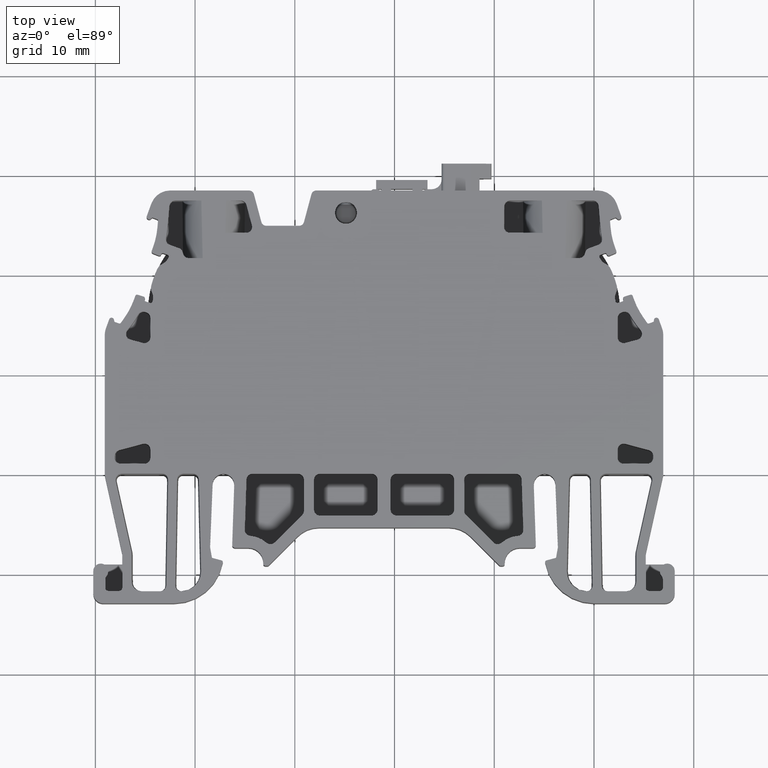
[diagram: clean part render]
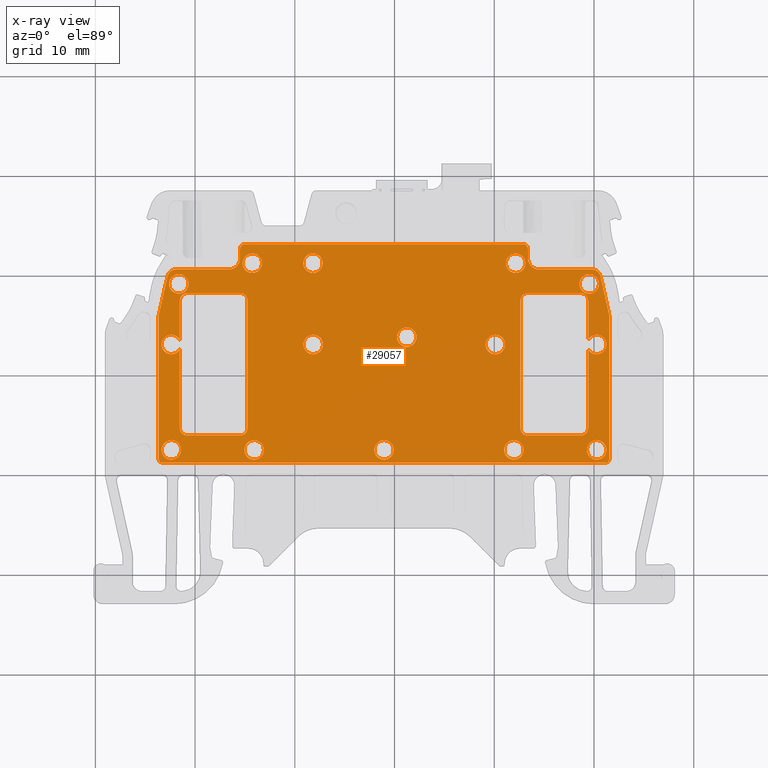
[diagram: x-ray — body ghosted, one internal face saturated and labeled with its STEP entity id]
A machine part, top view, then the same camera in x-ray: the body is ghosted and one INTERNAL B-rep face — a face not visible from any outside direction — is saturated and labeled: STEP entity #29057.
In plain terms, the highlighted planar face has unit normal (0, 0, 1).
Its self-contained STEP definition (entity closure, byte-faithful):
#2163 = CARTESIAN_POINT ( 'NONE',  ( 1041.168182212110200, 941.5662900422720400, -0.6999999999999999600 ) ) ;
#2164 = DIRECTION ( 'NONE',  ( 1.000000000000000000, 0.0000000000000000000, 0.0000000000000000000 ) ) ;
#2169 = CARTESIAN_POINT ( 'NONE',  ( 996.7187916286291100, 941.5662900422720400, -0.6999999999999999600 ) ) ;
#2170 = DIRECTION ( 'NONE',  ( 0.0000000000000000000, 0.0000000000000000000, 1.000000000000000000 ) ) ;
#2171 = CARTESIAN_POINT ( 'NONE',  ( 997.2346988465840200, 959.8791077576520400, -0.6999999999999999600 ) ) ;
#2172 = LINE ( 'NONE', #2171, #4394 ) ;
#2175 = DIRECTION ( 'NONE',  ( 1.000000000000000000, 0.0000000000000000000, 0.0000000000000000000 ) ) ;
#2177 = LINE ( 'NONE', #2194, #4398 ) ;
#2180 = CARTESIAN_POINT ( 'NONE',  ( 1003.385780318629900, 960.5626969177129700, -0.6999999999999999600 ) ) ;
#2186 = CARTESIAN_POINT ( 'NONE',  ( 998.0885061376949400, 959.6876969177120600, -0.6999999999999999600 ) ) ;
#2187 = DIRECTION ( 'NONE',  ( 0.0000000000000000000, 0.0000000000000000000, 1.000000000000000000 ) ) ;
#2189 = LINE ( 'NONE', #2180, #4418 ) ;
#2190 = DIRECTION ( 'NONE',  ( -0.2187552456458110300, -0.9757797612691302400, 0.0000000000000000000 ) ) ;
#2193 = DIRECTION ( 'NONE',  ( -1.000000000000000000, -1.676670659971970000E-013, 0.0000000000000000000 ) ) ;
#2194 = CARTESIAN_POINT ( 'NONE',  ( 1004.510780318629900, 962.6253022407199800, -0.6999999999999999600 ) ) ;
#2195 = DIRECTION ( 'NONE',  ( 0.0000000000000000000, -1.000000000000000000, 0.0000000000000000000 ) ) ;
#2196 = DIRECTION ( 'NONE',  ( 0.0000000000000000000, 0.0000000000000000000, 1.000000000000000000 ) ) ;
#2198 = DIRECTION ( 'NONE',  ( 1.000000000000000000, 0.0000000000000000000, 0.0000000000000000000 ) ) ;
#2203 = CARTESIAN_POINT ( 'NONE',  ( 1003.385780318629900, 961.6876969177130800, -0.6999999999999999600 ) ) ;
#2205 = DIRECTION ( 'NONE',  ( 1.000000000000000000, 0.0000000000000000000, 0.0000000000000000000 ) ) ;
#2209 = CARTESIAN_POINT ( 'NONE',  ( 1032.901191964936100, 962.6253022407199800, -0.6999999999999999600 ) ) ;
#2215 = DIRECTION ( 'NONE',  ( 1.000000000000000000, 0.0000000000000000000, 0.0000000000000000000 ) ) ;
#2217 = DIRECTION ( 'NONE',  ( 0.0000000000000000000, 0.0000000000000000000, 1.000000000000000000 ) ) ;
#2224 = DIRECTION ( 'NONE',  ( 1.559087638495740400E-014, 1.000000000000000000, 0.0000000000000000000 ) ) ;
#2225 = DIRECTION ( 'NONE',  ( 0.0000000000000000000, 0.0000000000000000000, -1.000000000000000000 ) ) ;
#2236 = CARTESIAN_POINT ( 'NONE',  ( 997.2187916286280800, 955.8082479311349300, -0.6999999999999999600 ) ) ;
#2237 = DIRECTION ( 'NONE',  ( 1.000000000000000000, 0.0000000000000000000, 0.0000000000000000000 ) ) ;
#2238 = DIRECTION ( 'NONE',  ( 0.0000000000000000000, 0.0000000000000000000, 1.000000000000000000 ) ) ;
#2246 = LINE ( 'NONE', #2247, #3134 ) ;
#2247 = CARTESIAN_POINT ( 'NONE',  ( 1041.543182212110200, 941.5662900422720400, -0.6999999999999999600 ) ) ;
#3134 = VECTOR ( 'NONE', #2224, 1000.000000000000000 ) ;
#3135 = CIRCLE ( 'NONE', #3142, 1.125000000000042600 ) ;
#3142 = AXIS2_PLACEMENT_3D ( 'NONE', #2203, #2225, #2215 ) ;
#4219 = VECTOR ( 'NONE', #14436, 1000.000000000000000 ) ;
#4285 = CIRCLE ( 'NONE', #4306, 0.4750000000000032000 ) ;
#4299 = CIRCLE ( 'NONE', #4331, 0.9749999999999481300 ) ;
#4306 = AXIS2_PLACEMENT_3D ( 'NONE', #14376, #14378, #12735 ) ;
#4309 = CIRCLE ( 'NONE', #4342, 0.8750000000001811900 ) ;
#4320 = VECTOR ( 'NONE', #12764, 1000.000000000000000 ) ;
#4331 = AXIS2_PLACEMENT_3D ( 'NONE', #14456, #14445, #14448 ) ;
#4342 = AXIS2_PLACEMENT_3D ( 'NONE', #12753, #12744, #12733 ) ;
#4355 = CIRCLE ( 'NONE', #4423, 0.3749999999999031900 ) ;
#4367 = CIRCLE ( 'NONE', #4372, 0.8749999999997371000 ) ;
#4372 = AXIS2_PLACEMENT_3D ( 'NONE', #2236, #2217, #2237 ) ;
#4385 = AXIS2_PLACEMENT_3D ( 'NONE', #2163, #2196, #2164 ) ;
#4394 = VECTOR ( 'NONE', #2190, 1000.000000000000200 ) ;
#4396 = AXIS2_PLACEMENT_3D ( 'NONE', #2186, #2187, #2175 ) ;
#4398 = VECTOR ( 'NONE', #2195, 1000.000000000000000 ) ;
#4400 = CIRCLE ( 'NONE', #4435, 0.4750000000000032000 ) ;
#4413 = CIRCLE ( 'NONE', #4385, 0.3750000000002362600 ) ;
#4418 = VECTOR ( 'NONE', #2193, 1000.000000000000000 ) ;
#4423 = AXIS2_PLACEMENT_3D ( 'NONE', #2169, #2170, #2198 ) ;
#4429 = CIRCLE ( 'NONE', #4396, 0.8749999999999591400 ) ;
#4435 = AXIS2_PLACEMENT_3D ( 'NONE', #2209, #2238, #2205 ) ;
#7317 = CIRCLE ( 'NONE', #7367, 0.9749999999999481300 ) ;
#7318 = AXIS2_PLACEMENT_3D ( 'NONE', #8280, #8256, #8279 ) ;
#7333 = CIRCLE ( 'NONE', #7344, 0.9750000000001701700 ) ;
#7341 = CIRCLE ( 'NONE', #7354, 0.9750000000001701700 ) ;
#7344 = AXIS2_PLACEMENT_3D ( 'NONE', #8313, #8297, #8302 ) ;
#7349 = CIRCLE ( 'NONE', #7363, 0.9750000000001701700 ) ;
#7354 = AXIS2_PLACEMENT_3D ( 'NONE', #8247, #8250, #8219 ) ;
#7359 = CIRCLE ( 'NONE', #7318, 0.9749999999999481300 ) ;
#7363 = AXIS2_PLACEMENT_3D ( 'NONE', #8304, #8305, #8306 ) ;
#7367 = AXIS2_PLACEMENT_3D ( 'NONE', #8311, #8335, #8310 ) ;
#7373 = CIRCLE ( 'NONE', #7420, 0.9749999999999481300 ) ;
#7379 = AXIS2_PLACEMENT_3D ( 'NONE', #8442, #8457, #8447 ) ;
#7383 = AXIS2_PLACEMENT_3D ( 'NONE', #8483, #8517, #8499 ) ;
#7391 = AXIS2_PLACEMENT_3D ( 'NONE', #8463, #8431, #8468 ) ;
#7396 = CIRCLE ( 'NONE', #7398, 0.9749999999999481300 ) ;
#7398 = AXIS2_PLACEMENT_3D ( 'NONE', #8490, #8501, #8503 ) ;
#7403 = CIRCLE ( 'NONE', #7379, 0.9750000000001701700 ) ;
#7409 = CIRCLE ( 'NONE', #7391, 0.9749999999999481300 ) ;
#7413 = CIRCLE ( 'NONE', #7383, 0.9750000000001701700 ) ;
#7415 = AXIS2_PLACEMENT_3D ( 'NONE', #8433, #8444, #8465 ) ;
#7420 = AXIS2_PLACEMENT_3D ( 'NONE', #8354, #8344, #8362 ) ;
#7427 = CIRCLE ( 'NONE', #7415, 0.9749999999999481300 ) ;
#7429 = CIRCLE ( 'NONE', #7445, 0.9750000000001701700 ) ;
#7442 = AXIS2_PLACEMENT_3D ( 'NONE', #8524, #8552, #8553 ) ;
#7445 = AXIS2_PLACEMENT_3D ( 'NONE', #8641, #8627, #8644 ) ;
#7457 = CIRCLE ( 'NONE', #7458, 1.125000000000042600 ) ;
#7458 = AXIS2_PLACEMENT_3D ( 'NONE', #8677, #8689, #8678 ) ;
#7481 = VECTOR ( 'NONE', #8639, 1000.000000000000000 ) ;
#7484 = CIRCLE ( 'NONE', #7442, 0.9749999999999481300 ) ;
#7524 = CIRCLE ( 'NONE', #7530, 0.9750000000001701700 ) ;
#7527 = VECTOR ( 'NONE', #8803, 1000.000000000000000 ) ;
#7530 = AXIS2_PLACEMENT_3D ( 'NONE', #8767, #8756, #8764 ) ;
#8219 = DIRECTION ( 'NONE',  ( 1.000000000000000000, 0.0000000000000000000, 0.0000000000000000000 ) ) ;
#8247 = CARTESIAN_POINT ( 'NONE',  ( 1030.105964989748100, 953.0374038595549600, -0.6999999999999999600 ) ) ;
#8250 = DIRECTION ( 'NONE',  ( 0.0000000000000000000, 0.0000000000000000000, 1.000000000000000000 ) ) ;
#8256 = DIRECTION ( 'NONE',  ( 0.0000000000000000000, 0.0000000000000000000, 1.000000000000000000 ) ) ;
#8279 = DIRECTION ( 'NONE',  ( 1.000000000000000000, 0.0000000000000000000, 0.0000000000000000000 ) ) ;
#8280 = CARTESIAN_POINT ( 'NONE',  ( 997.6187916286289700, 953.0373964913529800, -0.6999999999999999600 ) ) ;
#8297 = DIRECTION ( 'NONE',  ( 0.0000000000000000000, 0.0000000000000000000, 1.000000000000000000 ) ) ;
#8302 = DIRECTION ( 'NONE',  ( 1.000000000000000000, 0.0000000000000000000, 0.0000000000000000000 ) ) ;
#8304 = CARTESIAN_POINT ( 'NONE',  ( 1032.143483303782200, 961.1877988705668900, -0.6999999999999999600 ) ) ;
#8305 = DIRECTION ( 'NONE',  ( 0.0000000000000000000, 0.0000000000000000000, 1.000000000000000000 ) ) ;
#8306 = DIRECTION ( 'NONE',  ( 1.000000000000000000, 0.0000000000000000000, 0.0000000000000000000 ) ) ;
#8310 = DIRECTION ( 'NONE',  ( 1.000000000000000000, 0.0000000000000000000, 0.0000000000000000000 ) ) ;
#8311 = CARTESIAN_POINT ( 'NONE',  ( 1005.743488979784000, 961.1877988705668900, -0.6999999999999999600 ) ) ;
#8313 = CARTESIAN_POINT ( 'NONE',  ( 1005.920869548916100, 942.4662900422720200, -0.6999999999999999600 ) ) ;
#8335 = DIRECTION ( 'NONE',  ( 0.0000000000000000000, 0.0000000000000000000, 1.000000000000000000 ) ) ;
#8344 = DIRECTION ( 'NONE',  ( 0.0000000000000000000, 0.0000000000000000000, 1.000000000000000000 ) ) ;
#8354 = CARTESIAN_POINT ( 'NONE',  ( 997.6187916286289700, 942.4662900422720200, -0.6999999999999999600 ) ) ;
#8362 = DIRECTION ( 'NONE',  ( 1.000000000000000000, 0.0000000000000000000, 0.0000000000000000000 ) ) ;
#8431 = DIRECTION ( 'NONE',  ( 0.0000000000000000000, 0.0000000000000000000, 1.000000000000000000 ) ) ;
#8433 = CARTESIAN_POINT ( 'NONE',  ( 1011.822946062605900, 961.1877988705668900, -0.6999999999999999600 ) ) ;
#8442 = CARTESIAN_POINT ( 'NONE',  ( 1040.268182212110100, 953.0373964913529800, -0.6999999999999999600 ) ) ;
#8444 = DIRECTION ( 'NONE',  ( 0.0000000000000000000, 0.0000000000000000000, 1.000000000000000000 ) ) ;
#8447 = DIRECTION ( 'NONE',  ( 1.000000000000000000, 0.0000000000000000000, 0.0000000000000000000 ) ) ;
#8457 = DIRECTION ( 'NONE',  ( 0.0000000000000000000, 0.0000000000000000000, 1.000000000000000000 ) ) ;
#8463 = CARTESIAN_POINT ( 'NONE',  ( 1039.517423389122100, 959.1127957486720600, -0.6999999999999999600 ) ) ;
#8465 = DIRECTION ( 'NONE',  ( 1.000000000000000000, 0.0000000000000000000, 0.0000000000000000000 ) ) ;
#8468 = DIRECTION ( 'NONE',  ( 1.000000000000000000, 0.0000000000000000000, 0.0000000000000000000 ) ) ;
#8483 = CARTESIAN_POINT ( 'NONE',  ( 1040.268182212110100, 942.4662900422720200, -0.6999999999999999600 ) ) ;
#8490 = CARTESIAN_POINT ( 'NONE',  ( 1011.843485453461900, 953.0374038595549600, -0.6999999999999999600 ) ) ;
#8499 = DIRECTION ( 'NONE',  ( 1.000000000000000000, 0.0000000000000000000, 0.0000000000000000000 ) ) ;
#8501 = DIRECTION ( 'NONE',  ( 0.0000000000000000000, 0.0000000000000000000, 1.000000000000000000 ) ) ;
#8503 = DIRECTION ( 'NONE',  ( 1.000000000000000000, 0.0000000000000000000, 0.0000000000000000000 ) ) ;
#8517 = DIRECTION ( 'NONE',  ( 0.0000000000000000000, 0.0000000000000000000, 1.000000000000000000 ) ) ;
#8524 = CARTESIAN_POINT ( 'NONE',  ( 1031.966102734649900, 942.4662900422720200, -0.6999999999999999600 ) ) ;
#8552 = DIRECTION ( 'NONE',  ( 0.0000000000000000000, 0.0000000000000000000, 1.000000000000000000 ) ) ;
#8553 = DIRECTION ( 'NONE',  ( 1.000000000000000000, 0.0000000000000000000, 0.0000000000000000000 ) ) ;
#8627 = DIRECTION ( 'NONE',  ( 0.0000000000000000000, 0.0000000000000000000, 1.000000000000000000 ) ) ;
#8636 = LINE ( 'NONE', #8638, #7481 ) ;
#8638 = CARTESIAN_POINT ( 'NONE',  ( 1033.376191964936000, 961.6876969177120600, -0.6999999999999999600 ) ) ;
#8639 = DIRECTION ( 'NONE',  ( 0.0000000000000000000, 1.000000000000000000, 0.0000000000000000000 ) ) ;
#8641 = CARTESIAN_POINT ( 'NONE',  ( 1018.943486141783900, 942.4662900422720200, -0.6999999999999999600 ) ) ;
#8644 = DIRECTION ( 'NONE',  ( 1.000000000000000000, 0.0000000000000000000, 0.0000000000000000000 ) ) ;
#8677 = CARTESIAN_POINT ( 'NONE',  ( 1034.501191964935700, 961.6876969177120600, -0.6999999999999999600 ) ) ;
#8678 = DIRECTION ( 'NONE',  ( 1.000000000000000000, 0.0000000000000000000, 0.0000000000000000000 ) ) ;
#8689 = DIRECTION ( 'NONE',  ( 0.0000000000000000000, 0.0000000000000000000, -1.000000000000000000 ) ) ;
#8756 = DIRECTION ( 'NONE',  ( 0.0000000000000000000, 0.0000000000000000000, 1.000000000000000000 ) ) ;
#8764 = DIRECTION ( 'NONE',  ( 1.000000000000000000, 0.0000000000000000000, 0.0000000000000000000 ) ) ;
#8767 = CARTESIAN_POINT ( 'NONE',  ( 1021.224725221606000, 953.7757349748010300, -0.6999999999999999600 ) ) ;
#8800 = CARTESIAN_POINT ( 'NONE',  ( 1032.901191964936100, 963.1003022407200000, -0.6999999999999999600 ) ) ;
#8803 = DIRECTION ( 'NONE',  ( -1.000000000000000000, 3.977097091355420400E-015, 0.0000000000000000000 ) ) ;
#8826 = LINE ( 'NONE', #8800, #7527 ) ;
#9926 = EDGE_LOOP ( 'NONE', ( #38751, #38736, #38690, #38764, #38748, #38772, #38735, #38707, #38759, #38783, #38747 ) ) ;
#9930 = EDGE_LOOP ( 'NONE', ( #38749, #38779, #38769, #38781, #38698, #38691, #38720, #38757, #16492, #16449, #16513 ) ) ;
#9934 = EDGE_LOOP ( 'NONE', ( #15766, #15780 ) ) ;
#9935 = EDGE_LOOP ( 'NONE', ( #16434, #16531 ) ) ;
#9936 = EDGE_LOOP ( 'NONE', ( #16532, #16524 ) ) ;
#9948 = EDGE_LOOP ( 'NONE', ( #16525, #16431 ) ) ;
#9979 = EDGE_LOOP ( 'NONE', ( #15793, #15715 ) ) ;
#10003 = EDGE_LOOP ( 'NONE', ( #15812, #15782, #15794, #15781, #15792, #15711, #15785, #15738, #15717, #15742, #15805, #15729, #15818, #15768, #15725, #15777, #15826, #15726, #15776, #15749 ) ) ;
#10017 = EDGE_LOOP ( 'NONE', ( #15735, #15714 ) ) ;
#10019 = EDGE_LOOP ( 'NONE', ( #15791, #15767 ) ) ;
#10024 = EDGE_LOOP ( 'NONE', ( #16463, #16455 ) ) ;
#10028 = EDGE_LOOP ( 'NONE', ( #15739, #15834 ) ) ;
#10032 = EDGE_LOOP ( 'NONE', ( #15770, #15741 ) ) ;
#10033 = EDGE_LOOP ( 'NONE', ( #15804, #15740 ) ) ;
#10036 = EDGE_LOOP ( 'NONE', ( #15813, #15822 ) ) ;
#10037 = EDGE_LOOP ( 'NONE', ( #16429, #16436 ) ) ;
#10591 = EDGE_CURVE ( 'NONE', #11855, #11968, #14438, .T. ) ;
#10601 = EDGE_CURVE ( 'NONE', #11948, #11908, #4299, .T. ) ;
#10602 = EDGE_CURVE ( 'NONE', #11939, #11954, #4285, .T. ) ;
#10604 = EDGE_CURVE ( 'NONE', #11965, #11960, #14403, .T. ) ;
#10607 = EDGE_CURVE ( 'NONE', #11880, #11864, #4309, .T. ) ;
#10620 = EDGE_CURVE ( 'NONE', #11960, #11899, #4413, .T. ) ;
#10622 = EDGE_CURVE ( 'NONE', #11896, #11949, #2189, .T. ) ;
#10625 = EDGE_CURVE ( 'NONE', #11954, #11903, #2177, .T. ) ;
#10626 = EDGE_CURVE ( 'NONE', #11851, #11950, #2172, .T. ) ;
#10627 = EDGE_CURVE ( 'NONE', #11949, #11851, #4429, .T. ) ;
#10628 = EDGE_CURVE ( 'NONE', #11968, #11965, #4355, .T. ) ;
#10635 = EDGE_CURVE ( 'NONE', #11950, #11855, #4367, .T. ) ;
#10636 = EDGE_CURVE ( 'NONE', #11923, #11913, #4400, .T. ) ;
#10645 = EDGE_CURVE ( 'NONE', #11899, #11880, #2246, .T. ) ;
#10646 = EDGE_CURVE ( 'NONE', #11903, #11896, #3135, .T. ) ;
#11794 = VERTEX_POINT ( 'NONE', #41128 ) ;
#11802 = VERTEX_POINT ( 'NONE', #41164 ) ;
#11808 = VERTEX_POINT ( 'NONE', #41120 ) ;
#11813 = VERTEX_POINT ( 'NONE', #41151 ) ;
#11818 = VERTEX_POINT ( 'NONE', #41165 ) ;
#11842 = VERTEX_POINT ( 'NONE', #41233 ) ;
#11850 = VERTEX_POINT ( 'NONE', #41224 ) ;
#11851 = VERTEX_POINT ( 'NONE', #41177 ) ;
#11854 = VERTEX_POINT ( 'NONE', #41218 ) ;
#11855 = VERTEX_POINT ( 'NONE', #41227 ) ;
#11856 = VERTEX_POINT ( 'NONE', #41170 ) ;
#11860 = VERTEX_POINT ( 'NONE', #41171 ) ;
#11862 = VERTEX_POINT ( 'NONE', #41220 ) ;
#11863 = VERTEX_POINT ( 'NONE', #41194 ) ;
#11864 = VERTEX_POINT ( 'NONE', #41209 ) ;
#11866 = VERTEX_POINT ( 'NONE', #41231 ) ;
#11868 = VERTEX_POINT ( 'NONE', #41172 ) ;
#11869 = VERTEX_POINT ( 'NONE', #41221 ) ;
#11870 = VERTEX_POINT ( 'NONE', #41188 ) ;
#11880 = VERTEX_POINT ( 'NONE', #41185 ) ;
#11882 = VERTEX_POINT ( 'NONE', #41197 ) ;
#11889 = VERTEX_POINT ( 'NONE', #41210 ) ;
#11890 = VERTEX_POINT ( 'NONE', #41280 ) ;
#11892 = VERTEX_POINT ( 'NONE', #41286 ) ;
#11894 = VERTEX_POINT ( 'NONE', #41290 ) ;
#11896 = VERTEX_POINT ( 'NONE', #41239 ) ;
#11899 = VERTEX_POINT ( 'NONE', #41274 ) ;
#11901 = VERTEX_POINT ( 'NONE', #41297 ) ;
#11902 = VERTEX_POINT ( 'NONE', #41295 ) ;
#11903 = VERTEX_POINT ( 'NONE', #41255 ) ;
#11905 = VERTEX_POINT ( 'NONE', #41287 ) ;
#11906 = VERTEX_POINT ( 'NONE', #41284 ) ;
#11907 = VERTEX_POINT ( 'NONE', #41248 ) ;
#11908 = VERTEX_POINT ( 'NONE', #41282 ) ;
#11911 = VERTEX_POINT ( 'NONE', #41237 ) ;
#11912 = VERTEX_POINT ( 'NONE', #41254 ) ;
#11913 = VERTEX_POINT ( 'NONE', #41285 ) ;
#11915 = VERTEX_POINT ( 'NONE', #41296 ) ;
#11919 = VERTEX_POINT ( 'NONE', #41252 ) ;
#11920 = VERTEX_POINT ( 'NONE', #41244 ) ;
#11923 = VERTEX_POINT ( 'NONE', #41281 ) ;
#11924 = VERTEX_POINT ( 'NONE', #41291 ) ;
#11927 = VERTEX_POINT ( 'NONE', #41240 ) ;
#11928 = VERTEX_POINT ( 'NONE', #41292 ) ;
#11929 = VERTEX_POINT ( 'NONE', #41256 ) ;
#11932 = VERTEX_POINT ( 'NONE', #41253 ) ;
#11933 = VERTEX_POINT ( 'NONE', #41242 ) ;
#11939 = VERTEX_POINT ( 'NONE', #41273 ) ;
#11943 = VERTEX_POINT ( 'NONE', #41264 ) ;
#11948 = VERTEX_POINT ( 'NONE', #41268 ) ;
#11949 = VERTEX_POINT ( 'NONE', #41289 ) ;
#11950 = VERTEX_POINT ( 'NONE', #41241 ) ;
#11954 = VERTEX_POINT ( 'NONE', #41327 ) ;
#11955 = VERTEX_POINT ( 'NONE', #41308 ) ;
#11957 = VERTEX_POINT ( 'NONE', #41341 ) ;
#11960 = VERTEX_POINT ( 'NONE', #41340 ) ;
#11965 = VERTEX_POINT ( 'NONE', #41310 ) ;
#11968 = VERTEX_POINT ( 'NONE', #41320 ) ;
#11970 = VERTEX_POINT ( 'NONE', #41345 ) ;
#11971 = VERTEX_POINT ( 'NONE', #41358 ) ;
#11972 = VERTEX_POINT ( 'NONE', #41312 ) ;
#11974 = VERTEX_POINT ( 'NONE', #41343 ) ;
#11976 = VERTEX_POINT ( 'NONE', #41335 ) ;
#11982 = VERTEX_POINT ( 'NONE', #41323 ) ;
#12011 = VERTEX_POINT ( 'NONE', #41314 ) ;
#12012 = VERTEX_POINT ( 'NONE', #41318 ) ;
#12025 = VERTEX_POINT ( 'NONE', #41422 ) ;
#12041 = VERTEX_POINT ( 'NONE', #41419 ) ;
#12733 = DIRECTION ( 'NONE',  ( 1.000000000000000000, 0.0000000000000000000, 0.0000000000000000000 ) ) ;
#12735 = DIRECTION ( 'NONE',  ( 1.000000000000000000, 0.0000000000000000000, 0.0000000000000000000 ) ) ;
#12744 = DIRECTION ( 'NONE',  ( 0.0000000000000000000, 0.0000000000000000000, 1.000000000000000000 ) ) ;
#12753 = CARTESIAN_POINT ( 'NONE',  ( 1040.668182212110200, 955.8082479311349300, -0.6999999999999999600 ) ) ;
#12764 = DIRECTION ( 'NONE',  ( 1.000000000000000000, 2.497723838395525500E-015, 0.0000000000000000000 ) ) ;
#14376 = CARTESIAN_POINT ( 'NONE',  ( 1004.985780318630000, 962.6253022407199800, -0.6999999999999999600 ) ) ;
#14378 = DIRECTION ( 'NONE',  ( 0.0000000000000000000, 0.0000000000000000000, 1.000000000000000000 ) ) ;
#14403 = LINE ( 'NONE', #14412, #4320 ) ;
#14412 = CARTESIAN_POINT ( 'NONE',  ( 996.7187916286291100, 941.1912900422719300, -0.6999999999999999600 ) ) ;
#14436 = DIRECTION ( 'NONE',  ( 1.559087638495690200E-014, -1.000000000000000000, 0.0000000000000000000 ) ) ;
#14438 = LINE ( 'NONE', #14443, #4219 ) ;
#14443 = CARTESIAN_POINT ( 'NONE',  ( 996.3437916286291100, 955.8082479311349300, -0.6999999999999999600 ) ) ;
#14445 = DIRECTION ( 'NONE',  ( 0.0000000000000000000, 0.0000000000000000000, 1.000000000000000000 ) ) ;
#14448 = DIRECTION ( 'NONE',  ( 1.000000000000000000, 0.0000000000000000000, 0.0000000000000000000 ) ) ;
#14456 = CARTESIAN_POINT ( 'NONE',  ( 998.3695504516169900, 959.1127957486720600, -0.6999999999999999600 ) ) ;
#15711 = ORIENTED_EDGE ( 'NONE', *, *, #10645, .F. ) ;
#15714 = ORIENTED_EDGE ( 'NONE', *, *, #29337, .T. ) ;
#15715 = ORIENTED_EDGE ( 'NONE', *, *, #29382, .T. ) ;
#15717 = ORIENTED_EDGE ( 'NONE', *, *, #10628, .F. ) ;
#15725 = ORIENTED_EDGE ( 'NONE', *, *, #10646, .F. ) ;
#15726 = ORIENTED_EDGE ( 'NONE', *, *, #20647, .F. ) ;
#15729 = ORIENTED_EDGE ( 'NONE', *, *, #10626, .F. ) ;
#15735 = ORIENTED_EDGE ( 'NONE', *, *, #20561, .T. ) ;
#15738 = ORIENTED_EDGE ( 'NONE', *, *, #10604, .F. ) ;
#15739 = ORIENTED_EDGE ( 'NONE', *, *, #20634, .T. ) ;
#15740 = ORIENTED_EDGE ( 'NONE', *, *, #29410, .T. ) ;
#15741 = ORIENTED_EDGE ( 'NONE', *, *, #29395, .T. ) ;
#15742 = ORIENTED_EDGE ( 'NONE', *, *, #10591, .F. ) ;
#15749 = ORIENTED_EDGE ( 'NONE', *, *, #20602, .F. ) ;
#15766 = ORIENTED_EDGE ( 'NONE', *, *, #20541, .T. ) ;
#15767 = ORIENTED_EDGE ( 'NONE', *, *, #29306, .T. ) ;
#15768 = ORIENTED_EDGE ( 'NONE', *, *, #10622, .F. ) ;
#15770 = ORIENTED_EDGE ( 'NONE', *, *, #10601, .T. ) ;
#15776 = ORIENTED_EDGE ( 'NONE', *, *, #10636, .F. ) ;
#15777 = ORIENTED_EDGE ( 'NONE', *, *, #10625, .F. ) ;
#15780 = ORIENTED_EDGE ( 'NONE', *, *, #29367, .T. ) ;
#15781 = ORIENTED_EDGE ( 'NONE', *, *, #29735, .F. ) ;
#15782 = ORIENTED_EDGE ( 'NONE', *, *, #29756, .F. ) ;
#15785 = ORIENTED_EDGE ( 'NONE', *, *, #10620, .F. ) ;
#15791 = ORIENTED_EDGE ( 'NONE', *, *, #20508, .T. ) ;
#15792 = ORIENTED_EDGE ( 'NONE', *, *, #10607, .F. ) ;
#15793 = ORIENTED_EDGE ( 'NONE', *, *, #20536, .T. ) ;
#15794 = ORIENTED_EDGE ( 'NONE', *, *, #29737, .F. ) ;
#15804 = ORIENTED_EDGE ( 'NONE', *, *, #20470, .T. ) ;
#15805 = ORIENTED_EDGE ( 'NONE', *, *, #10635, .F. ) ;
#15812 = ORIENTED_EDGE ( 'NONE', *, *, #20614, .F. ) ;
#15813 = ORIENTED_EDGE ( 'NONE', *, *, #20497, .T. ) ;
#15818 = ORIENTED_EDGE ( 'NONE', *, *, #10627, .F. ) ;
#15822 = ORIENTED_EDGE ( 'NONE', *, *, #29351, .T. ) ;
#15826 = ORIENTED_EDGE ( 'NONE', *, *, #10602, .F. ) ;
#15834 = ORIENTED_EDGE ( 'NONE', *, *, #29380, .T. ) ;
#16429 = ORIENTED_EDGE ( 'NONE', *, *, #20550, .T. ) ;
#16431 = ORIENTED_EDGE ( 'NONE', *, *, #29342, .T. ) ;
#16434 = ORIENTED_EDGE ( 'NONE', *, *, #20591, .T. ) ;
#16436 = ORIENTED_EDGE ( 'NONE', *, *, #29363, .T. ) ;
#16449 = ORIENTED_EDGE ( 'NONE', *, *, #29358, .T. ) ;
#16455 = ORIENTED_EDGE ( 'NONE', *, *, #29318, .T. ) ;
#16463 = ORIENTED_EDGE ( 'NONE', *, *, #20567, .T. ) ;
#16492 = ORIENTED_EDGE ( 'NONE', *, *, #29384, .T. ) ;
#16513 = ORIENTED_EDGE ( 'NONE', *, *, #29352, .T. ) ;
#16524 = ORIENTED_EDGE ( 'NONE', *, *, #29414, .T. ) ;
#16525 = ORIENTED_EDGE ( 'NONE', *, *, #20511, .T. ) ;
#16531 = ORIENTED_EDGE ( 'NONE', *, *, #29303, .T. ) ;
#16532 = ORIENTED_EDGE ( 'NONE', *, *, #20500, .T. ) ;
#20470 = EDGE_CURVE ( 'NONE', #11976, #11974, #7341, .T. ) ;
#20485 = EDGE_CURVE ( 'NONE', #11889, #11972, #7359, .T. ) ;
#20497 = EDGE_CURVE ( 'NONE', #11943, #11907, #7317, .T. ) ;
#20500 = EDGE_CURVE ( 'NONE', #11794, #11854, #7333, .T. ) ;
#20508 = EDGE_CURVE ( 'NONE', #11890, #11924, #7349, .T. ) ;
#20511 = EDGE_CURVE ( 'NONE', #11842, #11818, #7373, .T. ) ;
#20536 = EDGE_CURVE ( 'NONE', #11850, #11892, #7409, .T. ) ;
#20541 = EDGE_CURVE ( 'NONE', #11856, #11882, #7427, .T. ) ;
#20545 = EDGE_CURVE ( 'NONE', #11808, #11802, #7403, .T. ) ;
#20550 = EDGE_CURVE ( 'NONE', #11894, #11868, #7413, .T. ) ;
#20561 = EDGE_CURVE ( 'NONE', #11902, #11866, #7396, .T. ) ;
#20567 = EDGE_CURVE ( 'NONE', #11870, #11912, #7484, .T. ) ;
#20591 = EDGE_CURVE ( 'NONE', #11911, #11813, #7429, .T. ) ;
#20602 = EDGE_CURVE ( 'NONE', #11860, #11923, #8636, .T. ) ;
#20614 = EDGE_CURVE ( 'NONE', #11971, #11860, #7457, .T. ) ;
#20634 = EDGE_CURVE ( 'NONE', #11957, #11901, #7524, .T. ) ;
#20647 = EDGE_CURVE ( 'NONE', #11913, #11939, #8826, .T. ) ;
#29057 = ADVANCED_FACE ( 'NONE', ( #33922, #33942, #33948, #33939, #33967, #33965, #33973, #33941, #33953, #33926, #33968, #33924, #33957, #33923, #33969, #33940 ), #33956, .F. ) ;
#29303 = EDGE_CURVE ( 'NONE', #11813, #11911, #31964, .T. ) ;
#29306 = EDGE_CURVE ( 'NONE', #11924, #11890, #32007, .T. ) ;
#29318 = EDGE_CURVE ( 'NONE', #11912, #11870, #31978, .T. ) ;
#29325 = EDGE_CURVE ( 'NONE', #11933, #11929, #32039, .T. ) ;
#29327 = EDGE_CURVE ( 'NONE', #11863, #11808, #32181, .T. ) ;
#29335 = EDGE_CURVE ( 'NONE', #11920, #11982, #34734, .T. ) ;
#29337 = EDGE_CURVE ( 'NONE', #11866, #11902, #32153, .T. ) ;
#29338 = EDGE_CURVE ( 'NONE', #11928, #11933, #34752, .T. ) ;
#29342 = EDGE_CURVE ( 'NONE', #11818, #11842, #32080, .T. ) ;
#29346 = EDGE_CURVE ( 'NONE', #11982, #11932, #32179, .T. ) ;
#29347 = EDGE_CURVE ( 'NONE', #11929, #11927, #34754, .T. ) ;
#29350 = EDGE_CURVE ( 'NONE', #11932, #12012, #34736, .T. ) ;
#29351 = EDGE_CURVE ( 'NONE', #11907, #11943, #32187, .T. ) ;
#29352 = EDGE_CURVE ( 'NONE', #11919, #11863, #34745, .T. ) ;
#29358 = EDGE_CURVE ( 'NONE', #12041, #11919, #32159, .T. ) ;
#29363 = EDGE_CURVE ( 'NONE', #11868, #11894, #32193, .T. ) ;
#29367 = EDGE_CURVE ( 'NONE', #11882, #11856, #32157, .T. ) ;
#29379 = EDGE_CURVE ( 'NONE', #11906, #11928, #32201, .T. ) ;
#29380 = EDGE_CURVE ( 'NONE', #11901, #11957, #32100, .T. ) ;
#29382 = EDGE_CURVE ( 'NONE', #11892, #11850, #32128, .T. ) ;
#29384 = EDGE_CURVE ( 'NONE', #11915, #12041, #34827, .T. ) ;
#29389 = EDGE_CURVE ( 'NONE', #12025, #11889, #34833, .T. ) ;
#29395 = EDGE_CURVE ( 'NONE', #11908, #11948, #32146, .T. ) ;
#29410 = EDGE_CURVE ( 'NONE', #11974, #11976, #32237, .T. ) ;
#29412 = EDGE_CURVE ( 'NONE', #11802, #11906, #33752, .T. ) ;
#29414 = EDGE_CURVE ( 'NONE', #11854, #11794, #32307, .T. ) ;
#29416 = EDGE_CURVE ( 'NONE', #11927, #11915, #32309, .T. ) ;
#29423 = EDGE_CURVE ( 'NONE', #12012, #12025, #32259, .T. ) ;
#29644 = EDGE_CURVE ( 'NONE', #11955, #11920, #32631, .T. ) ;
#29719 = EDGE_CURVE ( 'NONE', #11972, #11862, #32740, .T. ) ;
#29730 = EDGE_CURVE ( 'NONE', #12011, #11955, #36713, .T. ) ;
#29735 = EDGE_CURVE ( 'NONE', #11864, #11970, #36745, .T. ) ;
#29737 = EDGE_CURVE ( 'NONE', #11970, #11869, #32784, .T. ) ;
#29746 = EDGE_CURVE ( 'NONE', #11862, #11905, #36762, .T. ) ;
#29756 = EDGE_CURVE ( 'NONE', #11869, #11971, #36786, .T. ) ;
#29772 = EDGE_CURVE ( 'NONE', #11905, #12011, #32930, .T. ) ;
#31757 = AXIS2_PLACEMENT_3D ( 'NONE', #33945, #33919, #33950 ) ;
#31964 = CIRCLE ( 'NONE', #31994, 0.9750000000001701700 ) ;
#31978 = CIRCLE ( 'NONE', #32011, 0.9749999999999481300 ) ;
#31994 = AXIS2_PLACEMENT_3D ( 'NONE', #34660, #34621, #34632 ) ;
#32007 = CIRCLE ( 'NONE', #32070, 0.9750000000001701700 ) ;
#32011 = AXIS2_PLACEMENT_3D ( 'NONE', #34683, #34705, #34702 ) ;
#32039 = CIRCLE ( 'NONE', #32047, 0.7500000000000284200 ) ;
#32047 = AXIS2_PLACEMENT_3D ( 'NONE', #34690, #34693, #34666 ) ;
#32070 = AXIS2_PLACEMENT_3D ( 'NONE', #34626, #34627, #34628 ) ;
#32076 = VECTOR ( 'NONE', #34773, 1000.000000000000000 ) ;
#32080 = CIRCLE ( 'NONE', #32118, 0.9749999999999481300 ) ;
#32082 = AXIS2_PLACEMENT_3D ( 'NONE', #34767, #34760, #34794 ) ;
#32084 = AXIS2_PLACEMENT_3D ( 'NONE', #34811, #34818, #34808 ) ;
#32088 = AXIS2_PLACEMENT_3D ( 'NONE', #34722, #34755, #34723 ) ;
#32090 = AXIS2_PLACEMENT_3D ( 'NONE', #34776, #34790, #34777 ) ;
#32098 = AXIS2_PLACEMENT_3D ( 'NONE', #34787, #34775, #34799 ) ;
#32100 = CIRCLE ( 'NONE', #32104, 0.9750000000001701700 ) ;
#32104 = AXIS2_PLACEMENT_3D ( 'NONE', #34813, #34804, #34817 ) ;
#32106 = VECTOR ( 'NONE', #34733, 1000.000000000000000 ) ;
#32108 = VECTOR ( 'NONE', #34840, 1000.000000000000000 ) ;
#32110 = AXIS2_PLACEMENT_3D ( 'NONE', #34669, #34694, #34670 ) ;
#32118 = AXIS2_PLACEMENT_3D ( 'NONE', #34743, #34741, #34721 ) ;
#32126 = VECTOR ( 'NONE', #34801, 1000.000000000000000 ) ;
#32128 = CIRCLE ( 'NONE', #32132, 0.9749999999999481300 ) ;
#32132 = AXIS2_PLACEMENT_3D ( 'NONE', #34841, #34819, #34838 ) ;
#32138 = VECTOR ( 'NONE', #34714, 1000.000000000000100 ) ;
#32146 = CIRCLE ( 'NONE', #32165, 0.9749999999999481300 ) ;
#32150 = VECTOR ( 'NONE', #34724, 1000.000000000000100 ) ;
#32152 = AXIS2_PLACEMENT_3D ( 'NONE', #34729, #34713, #34716 ) ;
#32153 = CIRCLE ( 'NONE', #32152, 0.9749999999999481300 ) ;
#32157 = CIRCLE ( 'NONE', #32090, 0.9749999999999481300 ) ;
#32159 = CIRCLE ( 'NONE', #32082, 0.7500000000000284200 ) ;
#32165 = AXIS2_PLACEMENT_3D ( 'NONE', #34807, #34809, #34810 ) ;
#32169 = AXIS2_PLACEMENT_3D ( 'NONE', #34747, #34748, #34768 ) ;
#32179 = CIRCLE ( 'NONE', #32088, 0.7500000000000284200 ) ;
#32181 = CIRCLE ( 'NONE', #32110, 0.9750000000001701700 ) ;
#32187 = CIRCLE ( 'NONE', #32169, 0.9749999999999481300 ) ;
#32189 = VECTOR ( 'NONE', #34735, 1000.000000000000000 ) ;
#32193 = CIRCLE ( 'NONE', #32098, 0.9750000000001701700 ) ;
#32201 = CIRCLE ( 'NONE', #32084, 0.7500000000000284200 ) ;
#32219 = AXIS2_PLACEMENT_3D ( 'NONE', #33732, #33746, #33754 ) ;
#32233 = VECTOR ( 'NONE', #33729, 1000.000000000000000 ) ;
#32237 = CIRCLE ( 'NONE', #32327, 0.9750000000001701700 ) ;
#32239 = AXIS2_PLACEMENT_3D ( 'NONE', #33719, #33712, #33720 ) ;
#32259 = CIRCLE ( 'NONE', #32271, 0.7499999999999174000 ) ;
#32271 = AXIS2_PLACEMENT_3D ( 'NONE', #34222, #34233, #34279 ) ;
#32307 = CIRCLE ( 'NONE', #32239, 0.9750000000001701700 ) ;
#32309 = CIRCLE ( 'NONE', #32219, 0.7500000000000284200 ) ;
#32327 = AXIS2_PLACEMENT_3D ( 'NONE', #33726, #33753, #33722 ) ;
#32631 = CIRCLE ( 'NONE', #32664, 0.7500000000000284200 ) ;
#32664 = AXIS2_PLACEMENT_3D ( 'NONE', #36533, #36534, #36536 ) ;
#32700 = AXIS2_PLACEMENT_3D ( 'NONE', #36723, #36720, #36729 ) ;
#32718 = VECTOR ( 'NONE', #36785, 1000.000000000000000 ) ;
#32720 = AXIS2_PLACEMENT_3D ( 'NONE', #36747, #36748, #36749 ) ;
#32740 = CIRCLE ( 'NONE', #32700, 0.9749999999999481300 ) ;
#32750 = VECTOR ( 'NONE', #36764, 1000.000000000000000 ) ;
#32768 = VECTOR ( 'NONE', #36755, 1000.000000000000000 ) ;
#32774 = VECTOR ( 'NONE', #36728, 999.9999999999998900 ) ;
#32784 = CIRCLE ( 'NONE', #32720, 0.8749999999999591400 ) ;
#32866 = AXIS2_PLACEMENT_3D ( 'NONE', #36810, #36841, #36837 ) ;
#32930 = CIRCLE ( 'NONE', #32866, 0.7499999999999174000 ) ;
#33712 = DIRECTION ( 'NONE',  ( 0.0000000000000000000, 0.0000000000000000000, 1.000000000000000000 ) ) ;
#33719 = CARTESIAN_POINT ( 'NONE',  ( 1005.920869548916100, 942.4662900422720200, -0.6999999999999999600 ) ) ;
#33720 = DIRECTION ( 'NONE',  ( 1.000000000000000000, 0.0000000000000000000, 0.0000000000000000000 ) ) ;
#33722 = DIRECTION ( 'NONE',  ( 1.000000000000000000, 0.0000000000000000000, 0.0000000000000000000 ) ) ;
#33725 = CARTESIAN_POINT ( 'NONE',  ( 1039.418166062281900, 961.6876986258950000, -0.6999999999999999600 ) ) ;
#33726 = CARTESIAN_POINT ( 'NONE',  ( 1030.105964989748100, 953.0374038595549600, -0.6999999999999999600 ) ) ;
#33729 = DIRECTION ( 'NONE',  ( -3.474053680282853300E-007, 0.9999999999999396000, 0.0000000000000000000 ) ) ;
#33732 = CARTESIAN_POINT ( 'NONE',  ( 1033.368165222950000, 944.6662900422719500, -0.6999999999999999600 ) ) ;
#33746 = DIRECTION ( 'NONE',  ( 0.0000000000000000000, 0.0000000000000000000, 1.000000000000000000 ) ) ;
#33752 = LINE ( 'NONE', #33725, #32233 ) ;
#33753 = DIRECTION ( 'NONE',  ( 0.0000000000000000000, 0.0000000000000000000, 1.000000000000000000 ) ) ;
#33754 = DIRECTION ( 'NONE',  ( 1.000000000000000000, 0.0000000000000000000, 0.0000000000000000000 ) ) ;
#33919 = DIRECTION ( 'NONE',  ( 0.0000000000000000000, 0.0000000000000000000, 1.000000000000000000 ) ) ;
#33922 = FACE_BOUND ( 'NONE', #9926, .T. ) ;
#33923 = FACE_BOUND ( 'NONE', #10036, .T. ) ;
#33924 = FACE_BOUND ( 'NONE', #10028, .T. ) ;
#33926 = FACE_BOUND ( 'NONE', #10033, .T. ) ;
#33939 = FACE_BOUND ( 'NONE', #9936, .T. ) ;
#33940 = FACE_OUTER_BOUND ( 'NONE', #10003, .T. ) ;
#33941 = FACE_BOUND ( 'NONE', #9979, .T. ) ;
#33942 = FACE_BOUND ( 'NONE', #9930, .T. ) ;
#33945 = CARTESIAN_POINT ( 'NONE',  ( 1034.501191964935700, 961.6876969177120600, -0.6999999999999999600 ) ) ;
#33948 = FACE_BOUND ( 'NONE', #9948, .T. ) ;
#33950 = DIRECTION ( 'NONE',  ( 1.000000000000000000, 0.0000000000000000000, 0.0000000000000000000 ) ) ;
#33953 = FACE_BOUND ( 'NONE', #10019, .T. ) ;
#33956 = PLANE ( 'NONE',  #31757 ) ;
#33957 = FACE_BOUND ( 'NONE', #9934, .T. ) ;
#33965 = FACE_BOUND ( 'NONE', #10024, .T. ) ;
#33967 = FACE_BOUND ( 'NONE', #9935, .T. ) ;
#33968 = FACE_BOUND ( 'NONE', #10017, .T. ) ;
#33969 = FACE_BOUND ( 'NONE', #10032, .T. ) ;
#33973 = FACE_BOUND ( 'NONE', #10037, .T. ) ;
#34222 = CARTESIAN_POINT ( 'NONE',  ( 999.2187930940340300, 957.4346022096428900, -0.6999999999999999600 ) ) ;
#34233 = DIRECTION ( 'NONE',  ( 0.0000000000000000000, 0.0000000000000000000, 1.000000000000000000 ) ) ;
#34279 = DIRECTION ( 'NONE',  ( 1.000000000000000000, 0.0000000000000000000, 0.0000000000000000000 ) ) ;
#34621 = DIRECTION ( 'NONE',  ( 0.0000000000000000000, 0.0000000000000000000, 1.000000000000000000 ) ) ;
#34626 = CARTESIAN_POINT ( 'NONE',  ( 1032.143483303782200, 961.1877988705668900, -0.6999999999999999600 ) ) ;
#34627 = DIRECTION ( 'NONE',  ( 0.0000000000000000000, 0.0000000000000000000, 1.000000000000000000 ) ) ;
#34628 = DIRECTION ( 'NONE',  ( 1.000000000000000000, 0.0000000000000000000, 0.0000000000000000000 ) ) ;
#34632 = DIRECTION ( 'NONE',  ( 1.000000000000000000, 0.0000000000000000000, 0.0000000000000000000 ) ) ;
#34660 = CARTESIAN_POINT ( 'NONE',  ( 1018.943486141783900, 942.4662900422720200, -0.6999999999999999600 ) ) ;
#34666 = DIRECTION ( 'NONE',  ( 1.000000000000000000, 0.0000000000000000000, 0.0000000000000000000 ) ) ;
#34669 = CARTESIAN_POINT ( 'NONE',  ( 1040.268182212110100, 953.0373964913529800, -0.6999999999999999600 ) ) ;
#34670 = DIRECTION ( 'NONE',  ( 1.000000000000000000, 0.0000000000000000000, 0.0000000000000000000 ) ) ;
#34683 = CARTESIAN_POINT ( 'NONE',  ( 1031.966102734649900, 942.4662900422720200, -0.6999999999999999600 ) ) ;
#34690 = CARTESIAN_POINT ( 'NONE',  ( 1033.368165222950000, 957.4346011220239900, -0.6999999999999999600 ) ) ;
#34693 = DIRECTION ( 'NONE',  ( 0.0000000000000000000, 0.0000000000000000000, 1.000000000000000000 ) ) ;
#34694 = DIRECTION ( 'NONE',  ( 0.0000000000000000000, 0.0000000000000000000, 1.000000000000000000 ) ) ;
#34702 = DIRECTION ( 'NONE',  ( 1.000000000000000000, 0.0000000000000000000, 0.0000000000000000000 ) ) ;
#34705 = DIRECTION ( 'NONE',  ( 0.0000000000000000000, 0.0000000000000000000, 1.000000000000000000 ) ) ;
#34713 = DIRECTION ( 'NONE',  ( 0.0000000000000000000, 0.0000000000000000000, 1.000000000000000000 ) ) ;
#34714 = DIRECTION ( 'NONE',  ( -0.9999999999999789100, -2.052111042421689700E-007, 0.0000000000000000000 ) ) ;
#34716 = DIRECTION ( 'NONE',  ( 1.000000000000000000, 0.0000000000000000000, 0.0000000000000000000 ) ) ;
#34720 = CARTESIAN_POINT ( 'NONE',  ( 1034.501192683809900, 958.1846013545340400, -0.6999999999999999600 ) ) ;
#34721 = DIRECTION ( 'NONE',  ( 1.000000000000000000, 0.0000000000000000000, 0.0000000000000000000 ) ) ;
#34722 = CARTESIAN_POINT ( 'NONE',  ( 1004.518795410914100, 957.4346011220239900, -0.6999999999999999600 ) ) ;
#34723 = DIRECTION ( 'NONE',  ( 1.000000000000000000, 0.0000000000000000000, 0.0000000000000000000 ) ) ;
#34724 = DIRECTION ( 'NONE',  ( -0.9999999999999789100, 2.052111042421734700E-007, 0.0000000000000000000 ) ) ;
#34725 = CARTESIAN_POINT ( 'NONE',  ( 1005.268795410914100, 961.6876969177110400, -0.6999999999999999600 ) ) ;
#34729 = CARTESIAN_POINT ( 'NONE',  ( 1011.843485453461900, 953.0374038595549600, -0.6999999999999999600 ) ) ;
#34732 = CARTESIAN_POINT ( 'NONE',  ( 1039.418166062281900, 961.6876986258950000, -0.6999999999999999600 ) ) ;
#34733 = DIRECTION ( 'NONE',  ( -1.739028784136885100E-014, -1.000000000000000000, 0.0000000000000000000 ) ) ;
#34734 = LINE ( 'NONE', #34725, #32189 ) ;
#34735 = DIRECTION ( 'NONE',  ( -3.478057568273734900E-014, 1.000000000000000000, 0.0000000000000000000 ) ) ;
#34736 = LINE ( 'NONE', #34738, #32150 ) ;
#34738 = CARTESIAN_POINT ( 'NONE',  ( 1034.501191246060000, 958.1845949693030200, -0.6999999999999999600 ) ) ;
#34741 = DIRECTION ( 'NONE',  ( 0.0000000000000000000, 0.0000000000000000000, 1.000000000000000000 ) ) ;
#34743 = CARTESIAN_POINT ( 'NONE',  ( 997.6187916286289700, 942.4662900422720200, -0.6999999999999999600 ) ) ;
#34744 = CARTESIAN_POINT ( 'NONE',  ( 1032.618165222950000, 961.6876969177120600, -0.6999999999999999600 ) ) ;
#34745 = LINE ( 'NONE', #34732, #32076 ) ;
#34747 = CARTESIAN_POINT ( 'NONE',  ( 1005.743488979784000, 961.1877988705668900, -0.6999999999999999600 ) ) ;
#34748 = DIRECTION ( 'NONE',  ( 0.0000000000000000000, 0.0000000000000000000, 1.000000000000000000 ) ) ;
#34752 = LINE ( 'NONE', #34720, #32138 ) ;
#34754 = LINE ( 'NONE', #34744, #32106 ) ;
#34755 = DIRECTION ( 'NONE',  ( 0.0000000000000000000, 0.0000000000000000000, 1.000000000000000000 ) ) ;
#34760 = DIRECTION ( 'NONE',  ( 0.0000000000000000000, 0.0000000000000000000, 1.000000000000000000 ) ) ;
#34767 = CARTESIAN_POINT ( 'NONE',  ( 1038.668171975610200, 944.6662900422719500, -0.6999999999999999600 ) ) ;
#34768 = DIRECTION ( 'NONE',  ( 1.000000000000000000, 0.0000000000000000000, 0.0000000000000000000 ) ) ;
#34773 = DIRECTION ( 'NONE',  ( -3.474053680282853300E-007, 0.9999999999999396000, 0.0000000000000000000 ) ) ;
#34775 = DIRECTION ( 'NONE',  ( 0.0000000000000000000, 0.0000000000000000000, 1.000000000000000000 ) ) ;
#34776 = CARTESIAN_POINT ( 'NONE',  ( 1011.822946062605900, 961.1877988705668900, -0.6999999999999999600 ) ) ;
#34777 = DIRECTION ( 'NONE',  ( 1.000000000000000000, 0.0000000000000000000, 0.0000000000000000000 ) ) ;
#34787 = CARTESIAN_POINT ( 'NONE',  ( 1040.268182212110100, 942.4662900422720200, -0.6999999999999999600 ) ) ;
#34790 = DIRECTION ( 'NONE',  ( 0.0000000000000000000, 0.0000000000000000000, 1.000000000000000000 ) ) ;
#34794 = DIRECTION ( 'NONE',  ( 1.000000000000000000, 0.0000000000000000000, 0.0000000000000000000 ) ) ;
#34799 = DIRECTION ( 'NONE',  ( 1.000000000000000000, 0.0000000000000000000, 0.0000000000000000000 ) ) ;
#34801 = DIRECTION ( 'NONE',  ( -3.474053767234288400E-007, -0.9999999999999396000, 0.0000000000000000000 ) ) ;
#34804 = DIRECTION ( 'NONE',  ( 0.0000000000000000000, 0.0000000000000000000, 1.000000000000000000 ) ) ;
#34807 = CARTESIAN_POINT ( 'NONE',  ( 998.3695504516169900, 959.1127957486720600, -0.6999999999999999600 ) ) ;
#34808 = DIRECTION ( 'NONE',  ( 1.000000000000000000, 0.0000000000000000000, 0.0000000000000000000 ) ) ;
#34809 = DIRECTION ( 'NONE',  ( 0.0000000000000000000, 0.0000000000000000000, 1.000000000000000000 ) ) ;
#34810 = DIRECTION ( 'NONE',  ( 1.000000000000000000, 0.0000000000000000000, 0.0000000000000000000 ) ) ;
#34811 = CARTESIAN_POINT ( 'NONE',  ( 1038.668167539829900, 957.4346022096428900, -0.6999999999999999600 ) ) ;
#34813 = CARTESIAN_POINT ( 'NONE',  ( 1021.224725221606000, 953.7757349748010300, -0.6999999999999999600 ) ) ;
#34817 = DIRECTION ( 'NONE',  ( 1.000000000000000000, 0.0000000000000000000, 0.0000000000000000000 ) ) ;
#34818 = DIRECTION ( 'NONE',  ( 0.0000000000000000000, 0.0000000000000000000, 1.000000000000000000 ) ) ;
#34819 = DIRECTION ( 'NONE',  ( 0.0000000000000000000, 0.0000000000000000000, 1.000000000000000000 ) ) ;
#34820 = CARTESIAN_POINT ( 'NONE',  ( 1034.501191964935700, 943.9162900422719500, -0.6999999999999999600 ) ) ;
#34827 = LINE ( 'NONE', #34820, #32108 ) ;
#34831 = CARTESIAN_POINT ( 'NONE',  ( 998.4687945715869500, 961.6877094355610300, -0.6999999999999999600 ) ) ;
#34833 = LINE ( 'NONE', #34831, #32126 ) ;
#34838 = DIRECTION ( 'NONE',  ( 1.000000000000000000, 0.0000000000000000000, 0.0000000000000000000 ) ) ;
#34840 = DIRECTION ( 'NONE',  ( 1.000000000000000000, 0.0000000000000000000, 0.0000000000000000000 ) ) ;
#34841 = CARTESIAN_POINT ( 'NONE',  ( 1039.517423389122100, 959.1127957486720600, -0.6999999999999999600 ) ) ;
#36533 = CARTESIAN_POINT ( 'NONE',  ( 1004.518795410914100, 944.6662900422719500, -0.6999999999999999600 ) ) ;
#36534 = DIRECTION ( 'NONE',  ( 0.0000000000000000000, 0.0000000000000000000, 1.000000000000000000 ) ) ;
#36536 = DIRECTION ( 'NONE',  ( 1.000000000000000000, 0.0000000000000000000, 0.0000000000000000000 ) ) ;
#36713 = LINE ( 'NONE', #36737, #32768 ) ;
#36719 = CARTESIAN_POINT ( 'NONE',  ( 1041.521989503219900, 955.9996587710749100, -0.6999999999999999600 ) ) ;
#36720 = DIRECTION ( 'NONE',  ( 0.0000000000000000000, 0.0000000000000000000, 1.000000000000000000 ) ) ;
#36723 = CARTESIAN_POINT ( 'NONE',  ( 997.6187916286289700, 953.0373964913529800, -0.6999999999999999600 ) ) ;
#36728 = DIRECTION ( 'NONE',  ( -0.2187552456458255200, 0.9757797612691271300, 0.0000000000000000000 ) ) ;
#36729 = DIRECTION ( 'NONE',  ( 1.000000000000000000, 0.0000000000000000000, 0.0000000000000000000 ) ) ;
#36737 = CARTESIAN_POINT ( 'NONE',  ( 1034.501191964935700, 943.9162900422709300, -0.6999999999999999600 ) ) ;
#36745 = LINE ( 'NONE', #36719, #32774 ) ;
#36747 = CARTESIAN_POINT ( 'NONE',  ( 1039.798467703044000, 959.6876969177120600, -0.6999999999999999600 ) ) ;
#36748 = DIRECTION ( 'NONE',  ( 0.0000000000000000000, 0.0000000000000000000, 1.000000000000000000 ) ) ;
#36749 = DIRECTION ( 'NONE',  ( 1.000000000000000000, 0.0000000000000000000, 0.0000000000000000000 ) ) ;
#36755 = DIRECTION ( 'NONE',  ( 1.000000000000000000, -2.094757754917745200E-014, 0.0000000000000000000 ) ) ;
#36762 = LINE ( 'NONE', #36777, #32718 ) ;
#36764 = DIRECTION ( 'NONE',  ( -1.000000000000000000, 6.287513126634409700E-014, 0.0000000000000000000 ) ) ;
#36770 = CARTESIAN_POINT ( 'NONE',  ( 1039.798467703044000, 960.5626969177120600, -0.6999999999999999600 ) ) ;
#36777 = CARTESIAN_POINT ( 'NONE',  ( 998.4687945715869500, 961.6877094355610300, -0.6999999999999999600 ) ) ;
#36785 = DIRECTION ( 'NONE',  ( -3.474053767234288400E-007, -0.9999999999999396000, 0.0000000000000000000 ) ) ;
#36786 = LINE ( 'NONE', #36770, #32750 ) ;
#36810 = CARTESIAN_POINT ( 'NONE',  ( 999.2187886582539700, 944.6662900422719500, -0.6999999999999999600 ) ) ;
#36837 = DIRECTION ( 'NONE',  ( 1.000000000000000000, 0.0000000000000000000, 0.0000000000000000000 ) ) ;
#36841 = DIRECTION ( 'NONE',  ( 0.0000000000000000000, 0.0000000000000000000, 1.000000000000000000 ) ) ;
#38690 = ORIENTED_EDGE ( 'NONE', *, *, #29746, .T. ) ;
#38691 = ORIENTED_EDGE ( 'NONE', *, *, #29325, .T. ) ;
#38698 = ORIENTED_EDGE ( 'NONE', *, *, #29338, .T. ) ;
#38707 = ORIENTED_EDGE ( 'NONE', *, *, #29346, .T. ) ;
#38720 = ORIENTED_EDGE ( 'NONE', *, *, #29347, .T. ) ;
#38735 = ORIENTED_EDGE ( 'NONE', *, *, #29335, .T. ) ;
#38736 = ORIENTED_EDGE ( 'NONE', *, *, #29719, .T. ) ;
#38747 = ORIENTED_EDGE ( 'NONE', *, *, #29389, .T. ) ;
#38748 = ORIENTED_EDGE ( 'NONE', *, *, #29730, .T. ) ;
#38749 = ORIENTED_EDGE ( 'NONE', *, *, #29327, .T. ) ;
#38751 = ORIENTED_EDGE ( 'NONE', *, *, #20485, .T. ) ;
#38757 = ORIENTED_EDGE ( 'NONE', *, *, #29416, .T. ) ;
#38759 = ORIENTED_EDGE ( 'NONE', *, *, #29350, .T. ) ;
#38764 = ORIENTED_EDGE ( 'NONE', *, *, #29772, .T. ) ;
#38769 = ORIENTED_EDGE ( 'NONE', *, *, #29412, .T. ) ;
#38772 = ORIENTED_EDGE ( 'NONE', *, *, #29644, .T. ) ;
#38779 = ORIENTED_EDGE ( 'NONE', *, *, #20545, .T. ) ;
#38781 = ORIENTED_EDGE ( 'NONE', *, *, #29379, .T. ) ;
#38783 = ORIENTED_EDGE ( 'NONE', *, *, #29423, .T. ) ;
#41120 = CARTESIAN_POINT ( 'NONE',  ( 1041.243182212110200, 953.0373964913529800, -0.6999999999999999600 ) ) ;
#41128 = CARTESIAN_POINT ( 'NONE',  ( 1006.895869548916300, 942.4662900422720200, -0.6999999999999999600 ) ) ;
#41151 = CARTESIAN_POINT ( 'NONE',  ( 1017.968486141783700, 942.4662900422720200, -0.6999999999999999600 ) ) ;
#41164 = CARTESIAN_POINT ( 'NONE',  ( 1039.418168901522000, 953.5149971318709300, -0.6999999999999999600 ) ) ;
#41165 = CARTESIAN_POINT ( 'NONE',  ( 996.6437916286290600, 942.4662900422720200, -0.6999999999999999600 ) ) ;
#41170 = CARTESIAN_POINT ( 'NONE',  ( 1012.797946062605800, 961.1877988705668900, -0.6999999999999999600 ) ) ;
#41171 = CARTESIAN_POINT ( 'NONE',  ( 1033.376191964936000, 961.6876969177120600, -0.6999999999999999600 ) ) ;
#41172 = CARTESIAN_POINT ( 'NONE',  ( 1039.293182212110000, 942.4662900422720200, -0.6999999999999999600 ) ) ;
#41177 = CARTESIAN_POINT ( 'NONE',  ( 997.2346988465840200, 959.8791077576520400, -0.6999999999999999600 ) ) ;
#41185 = CARTESIAN_POINT ( 'NONE',  ( 1041.543182212110200, 955.8082479311349300, -0.6999999999999999600 ) ) ;
#41188 = CARTESIAN_POINT ( 'NONE',  ( 1032.941102734649800, 942.4662900422720200, -0.6999999999999999600 ) ) ;
#41194 = CARTESIAN_POINT ( 'NONE',  ( 1039.418169233363900, 952.5597952602370200, -0.6999999999999999600 ) ) ;
#41197 = CARTESIAN_POINT ( 'NONE',  ( 1010.847946062605800, 961.1877988705668900, -0.6999999999999999600 ) ) ;
#41209 = CARTESIAN_POINT ( 'NONE',  ( 1041.521989503219900, 955.9996587710749100, -0.6999999999999999600 ) ) ;
#41210 = CARTESIAN_POINT ( 'NONE',  ( 998.4687917323509500, 953.5150206361290700, -0.6999999999999999600 ) ) ;
#41218 = CARTESIAN_POINT ( 'NONE',  ( 1004.945869548916000, 942.4662900422720200, -0.6999999999999999600 ) ) ;
#41220 = CARTESIAN_POINT ( 'NONE',  ( 998.4687914004919100, 952.5597717559880900, -0.6999999999999999600 ) ) ;
#41221 = CARTESIAN_POINT ( 'NONE',  ( 1039.798467703044000, 960.5626969177120600, -0.6999999999999999600 ) ) ;
#41224 = CARTESIAN_POINT ( 'NONE',  ( 1040.492423389122000, 959.1127957486720600, -0.6999999999999999600 ) ) ;
#41227 = CARTESIAN_POINT ( 'NONE',  ( 996.3437916286291100, 955.8082479311349300, -0.6999999999999999600 ) ) ;
#41231 = CARTESIAN_POINT ( 'NONE',  ( 1010.868485453462000, 953.0374038595549600, -0.6999999999999999600 ) ) ;
#41233 = CARTESIAN_POINT ( 'NONE',  ( 998.5937916286288800, 942.4662900422720200, -0.6999999999999999600 ) ) ;
#41237 = CARTESIAN_POINT ( 'NONE',  ( 1019.918486141784000, 942.4662900422720200, -0.6999999999999999600 ) ) ;
#41239 = CARTESIAN_POINT ( 'NONE',  ( 1003.385780318629900, 960.5626969177129700, -0.6999999999999999600 ) ) ;
#41240 = CARTESIAN_POINT ( 'NONE',  ( 1032.618165222950000, 944.6662900422719500, -0.6999999999999999600 ) ) ;
#41241 = CARTESIAN_POINT ( 'NONE',  ( 996.3649843375179700, 955.9996587710749100, -0.6999999999999999600 ) ) ;
#41242 = CARTESIAN_POINT ( 'NONE',  ( 1033.368165069042100, 958.1846011220239900, -0.6999999999999999600 ) ) ;
#41244 = CARTESIAN_POINT ( 'NONE',  ( 1005.268795410914100, 944.6662900422719500, -0.6999999999999999600 ) ) ;
#41248 = CARTESIAN_POINT ( 'NONE',  ( 1004.768488979784100, 961.1877988705668900, -0.6999999999999999600 ) ) ;
#41252 = CARTESIAN_POINT ( 'NONE',  ( 1039.418171975610000, 944.6662903028260400, -0.6999999999999999600 ) ) ;
#41253 = CARTESIAN_POINT ( 'NONE',  ( 1004.518795564822100, 958.1846011220239900, -0.6999999999999999600 ) ) ;
#41254 = CARTESIAN_POINT ( 'NONE',  ( 1030.991102734650000, 942.4662900422720200, -0.6999999999999999600 ) ) ;
#41255 = CARTESIAN_POINT ( 'NONE',  ( 1004.510780318629900, 961.6876969177130800, -0.6999999999999999600 ) ) ;
#41256 = CARTESIAN_POINT ( 'NONE',  ( 1032.618165222950000, 957.4346011220239900, -0.6999999999999999600 ) ) ;
#41264 = CARTESIAN_POINT ( 'NONE',  ( 1006.718488979784000, 961.1877988705668900, -0.6999999999999999600 ) ) ;
#41268 = CARTESIAN_POINT ( 'NONE',  ( 999.3445504516170100, 959.1127957486720600, -0.6999999999999999600 ) ) ;
#41273 = CARTESIAN_POINT ( 'NONE',  ( 1004.985780318630000, 963.1003022407200000, -0.6999999999999999600 ) ) ;
#41274 = CARTESIAN_POINT ( 'NONE',  ( 1041.543182212110200, 941.5662900422720400, -0.6999999999999999600 ) ) ;
#41280 = CARTESIAN_POINT ( 'NONE',  ( 1033.118483303782300, 961.1877988705668900, -0.6999999999999999600 ) ) ;
#41281 = CARTESIAN_POINT ( 'NONE',  ( 1033.376191964936000, 962.6253022407199800, -0.6999999999999999600 ) ) ;
#41282 = CARTESIAN_POINT ( 'NONE',  ( 997.3945504516170800, 959.1127957486720600, -0.6999999999999999600 ) ) ;
#41284 = CARTESIAN_POINT ( 'NONE',  ( 1039.418167539829900, 957.4346024701969800, -0.6999999999999999600 ) ) ;
#41285 = CARTESIAN_POINT ( 'NONE',  ( 1032.901191964936100, 963.1003022407200000, -0.6999999999999999600 ) ) ;
#41286 = CARTESIAN_POINT ( 'NONE',  ( 1038.542423389122000, 959.1127957486720600, -0.6999999999999999600 ) ) ;
#41287 = CARTESIAN_POINT ( 'NONE',  ( 998.4687886582540800, 944.6662903028260400, -0.6999999999999999600 ) ) ;
#41289 = CARTESIAN_POINT ( 'NONE',  ( 998.0885061376949400, 960.5626969177120600, -0.6999999999999999600 ) ) ;
#41290 = CARTESIAN_POINT ( 'NONE',  ( 1041.243182212110200, 942.4662900422720200, -0.6999999999999999600 ) ) ;
#41291 = CARTESIAN_POINT ( 'NONE',  ( 1031.168483303782100, 961.1877988705668900, -0.6999999999999999600 ) ) ;
#41292 = CARTESIAN_POINT ( 'NONE',  ( 1038.668167385921800, 958.1846022096430000, -0.6999999999999999600 ) ) ;
#41295 = CARTESIAN_POINT ( 'NONE',  ( 1012.818485453461900, 953.0374038595549600, -0.6999999999999999600 ) ) ;
#41296 = CARTESIAN_POINT ( 'NONE',  ( 1033.368165222950000, 943.9162900422719500, -0.6999999999999999600 ) ) ;
#41297 = CARTESIAN_POINT ( 'NONE',  ( 1020.249725221605800, 953.7757349748010300, -0.6999999999999999600 ) ) ;
#41308 = CARTESIAN_POINT ( 'NONE',  ( 1004.518795410914100, 943.9162900422719500, -0.6999999999999999600 ) ) ;
#41310 = CARTESIAN_POINT ( 'NONE',  ( 996.7187916286291100, 941.1912900422719300, -0.6999999999999999600 ) ) ;
#41312 = CARTESIAN_POINT ( 'NONE',  ( 996.6437916286290600, 953.0373964913529800, -0.6999999999999999600 ) ) ;
#41314 = CARTESIAN_POINT ( 'NONE',  ( 999.2187886582539700, 943.9162900422719500, -0.6999999999999999600 ) ) ;
#41318 = CARTESIAN_POINT ( 'NONE',  ( 999.2187932479430400, 958.1846022096430000, -0.6999999999999999600 ) ) ;
#41320 = CARTESIAN_POINT ( 'NONE',  ( 996.3437916286291100, 941.5662900422720400, -0.6999999999999999600 ) ) ;
#41323 = CARTESIAN_POINT ( 'NONE',  ( 1005.268795410914100, 957.4346011220239900, -0.6999999999999999600 ) ) ;
#41327 = CARTESIAN_POINT ( 'NONE',  ( 1004.510780318629900, 962.6253022407199800, -0.6999999999999999600 ) ) ;
#41335 = CARTESIAN_POINT ( 'NONE',  ( 1031.080964989748300, 953.0374038595549600, -0.6999999999999999600 ) ) ;
#41340 = CARTESIAN_POINT ( 'NONE',  ( 1041.168182212110200, 941.1912900422719300, -0.6999999999999999600 ) ) ;
#41341 = CARTESIAN_POINT ( 'NONE',  ( 1022.199725221606200, 953.7757349748010300, -0.6999999999999999600 ) ) ;
#41343 = CARTESIAN_POINT ( 'NONE',  ( 1029.130964989748000, 953.0374038595549600, -0.6999999999999999600 ) ) ;
#41345 = CARTESIAN_POINT ( 'NONE',  ( 1040.652274994153900, 959.8791077576520400, -0.6999999999999999600 ) ) ;
#41358 = CARTESIAN_POINT ( 'NONE',  ( 1034.501191964935700, 960.5626969177120600, -0.6999999999999999600 ) ) ;
#41419 = CARTESIAN_POINT ( 'NONE',  ( 1038.668171975610200, 943.9162900422719500, -0.6999999999999999600 ) ) ;
#41422 = CARTESIAN_POINT ( 'NONE',  ( 998.4687930940340300, 957.4346024701969800, -0.6999999999999999600 ) ) ;